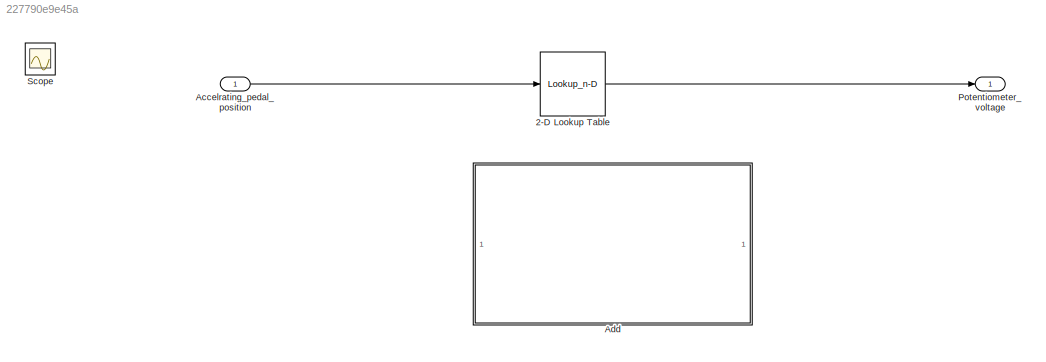
MODEL slx_227790e9e45a
KIND model
CONFIG AbsTol = auto
CONFIG EnableMultiTasking = off
CONFIG FixedStep = auto
CONFIG MaxStep = auto
CONFIG MinStep = auto
CONFIG PreLoadFcn = data\n
CONFIG RelTol = 1e-3
CONFIG SampleTimeConstraint = Unconstrained
CONFIG SolverName = FixedStepAuto
CONFIG StartTime = 0.0
CONFIG StopFcn = drawing
CONFIG StopTime = 10.0
BLOCK [Lookup_n-D] 2-D Lookup Table
  BreakpointsForDimension1 = [0,0.1,0.2,0.3,0.4,0.5,0.6,0.7,0.8,0.9,1]
  BreakpointsForDimension2 = [1:3]
  InputPortMap = u0
  InternalRulePriority = Speed
  NumberOfTableDimensions = 1
  Ports = [1, 1]
  RndMeth = Simplest
  Table = [0.5,0.9,1.3,1.7,2.1,2.5,2.9,3.3,3.7,4.1,4.5]
BLOCK [Inport] Accelrating_pedal_position
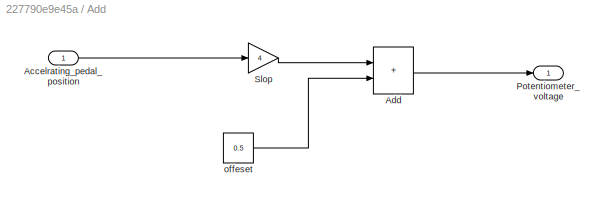
BLOCK [SubSystem] Add
  Commented = on
  Ports = [1, 1]
  RequestExecContextInheritance = off
BLOCK [Inport] Add/Accelrating_pedal_position
BLOCK [Sum] Add/Add
  IconShape = rectangular
  Ports = [2, 1]
BLOCK [Outport] Add/Potentiometer_voltage
BLOCK [Gain] Add/Slop
  Gain = 4
BLOCK [Constant] Add/offeset
  Value = 0.5
BLOCK [Outport] Potentiometer_voltage
BLOCK [Scope] Scope
  Floating = off
  IOType = viewer
  NumInputPorts = 1
  Ports = []
  ScopeSpecificationString = Simulink.scopes.TimeScopeBlockCfg('CurrentConfiguration', extmgr.ConfigurationSet(extmgr.Configuration('Core','General UI',true),extmgr.Configuration('Core','Source UI',true),extmgr.Configuration('Sources','WiredSimulink',true),extmgr.Configuration('Visuals','Time Domain',true,'SerializedDisplays',{struct('MinYLimReal','0.00000','MaxYLimReal','5.00000','YLabelReal','','MinYLimMag','0.00000','MaxYL...<+1318ch>
LINE 2-D Lookup Table:1 -> Potentiometer_voltage:1
LINE Accelrating_pedal_position:1 -> 2-D Lookup Table:1
LINE Add/Accelrating_pedal_position:1 -> Add/Slop:1
LINE Add/Add:1 -> Add/Potentiometer_voltage:1
LINE Add/Slop:1 -> Add/Add:1
LINE Add/offeset:1 -> Add/Add:2
